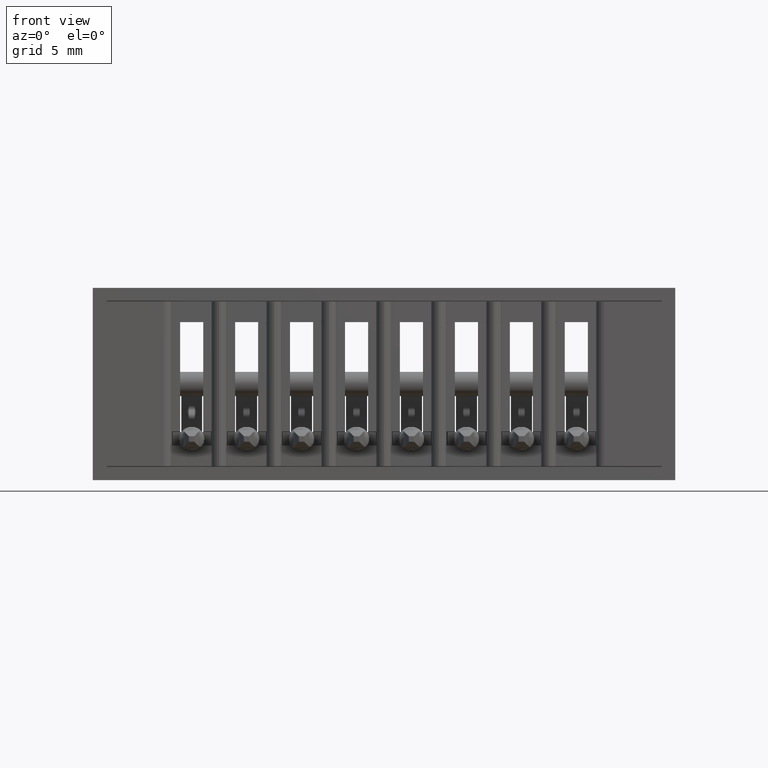
[diagram: clean part render]
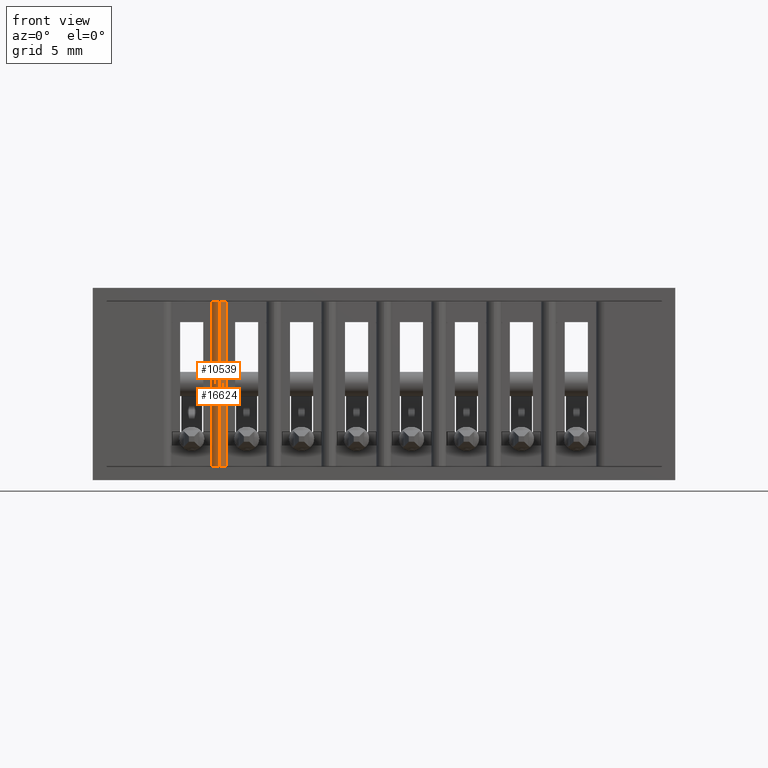
[diagram: same view with one multi-face feature highlighted, each face labeled with its STEP entity id]
A machine part, front view. The highlighted faces form ONE feature: a constant-radius fillet chain: 2 tangent blend faces with common blend radius 0.381 mm. The faces share edges in the B-rep.
Their STEP definitions:
[1] entity #10539 (Cylinder):
#6 = AXIS2_PLACEMENT_3D ( 'NONE', #14142, #5935, #15520 ) ;
#124 = LINE ( 'NONE', #8327, #13921 ) ;
#290 = VERTEX_POINT ( 'NONE', #2509 ) ;
#301 = DIRECTION ( 'NONE',  ( 1.000000000000000000, 0.0000000000000000000, 0.0000000000000000000 ) ) ;
#442 = LINE ( 'NONE', #7029, #10633 ) ;
#464 = VERTEX_POINT ( 'NONE', #8368 ) ;
#875 = VERTEX_POINT ( 'NONE', #3066 ) ;
#960 = CARTESIAN_POINT ( 'NONE',  ( 0.2159999999999996900, 0.01499999999999993200, -0.3499999999999999800 ) ) ;
#1284 = EDGE_CURVE ( 'NONE', #8221, #11130, #124, .T. ) ;
#1411 = CARTESIAN_POINT ( 'NONE',  ( 0.2159999999999996900, 0.01499999999999993200, -0.3499999999999999800 ) ) ;
#1544 = EDGE_CURVE ( 'NONE', #875, #11130, #5986, .T. ) ;
#1702 = DIRECTION ( 'NONE',  ( -0.0000000000000000000, -0.0000000000000000000, 1.000000000000000000 ) ) ;
#1873 = CARTESIAN_POINT ( 'NONE',  ( 0.2159999999999996900, 0.01499999999999993200, -0.02500000000000000500 ) ) ;
#2123 = CARTESIAN_POINT ( 'NONE',  ( 0.2159999999999996900, 0.01500000000000002700, -0.2615000000000001800 ) ) ;
#2509 = CARTESIAN_POINT ( 'NONE',  ( 0.2159999999999996900, 0.01500000000000003200, -0.2875000000000001400 ) ) ;
#2690 = FACE_OUTER_BOUND ( 'NONE', #16123, .T. ) ;
#3014 = DIRECTION ( 'NONE',  ( -0.0000000000000000000, -0.0000000000000000000, 1.000000000000000000 ) ) ;
#3066 = CARTESIAN_POINT ( 'NONE',  ( 0.2299999999999992300, 3.337045290419808700E-005, -0.02500000000000000500 ) ) ;
#3091 = CARTESIAN_POINT ( 'NONE',  ( 0.2309999999999996800, 0.01499999999999991600, -0.3499999999999999800 ) ) ;
#3318 = ORIENTED_EDGE ( 'NONE', *, *, #4066, .F. ) ;
#3658 = ORIENTED_EDGE ( 'NONE', *, *, #13545, .F. ) ;
#3784 = AXIS2_PLACEMENT_3D ( 'NONE', #3091, #1702, #301 ) ;
#4066 = EDGE_CURVE ( 'NONE', #14289, #8486, #8388, .T. ) ;
#4151 = LINE ( 'NONE', #1411, #14671 ) ;
#4225 = ORIENTED_EDGE ( 'NONE', *, *, #1284, .F. ) ;
#4362 = ORIENTED_EDGE ( 'NONE', *, *, #1544, .T. ) ;
#4726 = VECTOR ( 'NONE', #9262, 39.37007874015748100 ) ;
#4793 = CARTESIAN_POINT ( 'NONE',  ( 0.2159999999999996900, 0.01499999999999993200, -0.3249999999999999600 ) ) ;
#5019 = VECTOR ( 'NONE', #11170, 39.37007874015748100 ) ;
#5063 = CIRCLE ( 'NONE', #17371, 0.01499999999999997700 ) ;
#5076 = CYLINDRICAL_SURFACE ( 'NONE', #3784, 0.01499999999999997700 ) ;
#5935 = DIRECTION ( 'NONE',  ( 0.0000000000000000000, -0.0000000000000000000, -1.000000000000000000 ) ) ;
#5986 = CIRCLE ( 'NONE', #6, 0.01499999999999997700 ) ;
#6905 = DIRECTION ( 'NONE',  ( -0.0000000000000000000, -0.0000000000000000000, 1.000000000000000000 ) ) ;
#6974 = DIRECTION ( 'NONE',  ( -0.0000000000000000000, -0.0000000000000000000, 1.000000000000000000 ) ) ;
#7029 = CARTESIAN_POINT ( 'NONE',  ( 0.2299999999999992300, 3.337045290419595200E-005, -0.1749999999999999900 ) ) ;
#7174 = CARTESIAN_POINT ( 'NONE',  ( 0.2159999999999996900, 0.01499999999999998900, -0.08849999999999995400 ) ) ;
#8086 = DIRECTION ( 'NONE',  ( -0.0000000000000000000, -0.0000000000000000000, -1.000000000000000000 ) ) ;
#8221 = VERTEX_POINT ( 'NONE', #14329 ) ;
#8327 = CARTESIAN_POINT ( 'NONE',  ( 0.2159999999999996900, 0.01499999999999993200, -0.3499999999999999800 ) ) ;
#8368 = CARTESIAN_POINT ( 'NONE',  ( 0.2299999999999992300, 3.337045290420022100E-005, -0.3249999999999999600 ) ) ;
#8388 = LINE ( 'NONE', #960, #4726 ) ;
#8486 = VERTEX_POINT ( 'NONE', #7174 ) ;
#8891 = VECTOR ( 'NONE', #3014, 39.37007874015748100 ) ;
#9262 = DIRECTION ( 'NONE',  ( -0.0000000000000000000, -0.0000000000000000000, 1.000000000000000000 ) ) ;
#9789 = CARTESIAN_POINT ( 'NONE',  ( 0.2159999999999996900, 0.01499999999999993200, -0.3499999999999999800 ) ) ;
#10539 = ADVANCED_FACE ( 'NONE', ( #2690 ), #5076, .T. ) ;
#10633 = VECTOR ( 'NONE', #13846, 39.37007874015748100 ) ;
#11130 = VERTEX_POINT ( 'NONE', #1873 ) ;
#11170 = DIRECTION ( 'NONE',  ( -0.0000000000000000000, -0.0000000000000000000, 1.000000000000000000 ) ) ;
#11291 = CARTESIAN_POINT ( 'NONE',  ( 0.2159999999999996900, 0.01499999999999993200, -0.3499999999999999800 ) ) ;
#12099 = LINE ( 'NONE', #11291, #8891 ) ;
#12627 = EDGE_CURVE ( 'NONE', #464, #13743, #5063, .T. ) ;
#12845 = ORIENTED_EDGE ( 'NONE', *, *, #12627, .F. ) ;
#13522 = EDGE_CURVE ( 'NONE', #13743, #290, #4151, .T. ) ;
#13545 = EDGE_CURVE ( 'NONE', #875, #464, #442, .T. ) ;
#13743 = VERTEX_POINT ( 'NONE', #4793 ) ;
#13846 = DIRECTION ( 'NONE',  ( 0.0000000000000000000, 0.0000000000000000000, -1.000000000000000000 ) ) ;
#13921 = VECTOR ( 'NONE', #6974, 39.37007874015748100 ) ;
#14108 = EDGE_CURVE ( 'NONE', #290, #14289, #12099, .T. ) ;
#14142 = CARTESIAN_POINT ( 'NONE',  ( 0.2309999999999996800, 0.01499999999999991600, -0.02500000000000000500 ) ) ;
#14289 = VERTEX_POINT ( 'NONE', #2123 ) ;
#14329 = CARTESIAN_POINT ( 'NONE',  ( 0.2159999999999996900, 0.01499999999999998900, -0.06250000000000002800 ) ) ;
#14671 = VECTOR ( 'NONE', #6905, 39.37007874015748100 ) ;
#15520 = DIRECTION ( 'NONE',  ( 1.000000000000000000, 0.0000000000000000000, 0.0000000000000000000 ) ) ;
#15981 = LINE ( 'NONE', #9789, #5019 ) ;
#16123 = EDGE_LOOP ( 'NONE', ( #3658, #4362, #4225, #16349, #3318, #17776, #16427, #12845 ) ) ;
#16278 = EDGE_CURVE ( 'NONE', #8486, #8221, #15981, .T. ) ;
#16293 = CARTESIAN_POINT ( 'NONE',  ( 0.2309999999999996800, 0.01499999999999991600, -0.3249999999999999600 ) ) ;
#16349 = ORIENTED_EDGE ( 'NONE', *, *, #16278, .F. ) ;
#16427 = ORIENTED_EDGE ( 'NONE', *, *, #13522, .F. ) ;
#17371 = AXIS2_PLACEMENT_3D ( 'NONE', #16293, #8086, #17649 ) ;
#17649 = DIRECTION ( 'NONE',  ( 1.000000000000000000, 0.0000000000000000000, 0.0000000000000000000 ) ) ;
#17776 = ORIENTED_EDGE ( 'NONE', *, *, #14108, .F. ) ;
[2] entity #16624 (Cylinder):
#50 = LINE ( 'NONE', #4621, #11099 ) ;
#253 = CARTESIAN_POINT ( 'NONE',  ( 0.2439999999999996600, 0.01499999999999997500, -0.3249999999999999600 ) ) ;
#442 = LINE ( 'NONE', #7029, #10633 ) ;
#464 = VERTEX_POINT ( 'NONE', #8368 ) ;
#875 = VERTEX_POINT ( 'NONE', #3066 ) ;
#1014 = ORIENTED_EDGE ( 'NONE', *, *, #6028, .T. ) ;
#1311 = ORIENTED_EDGE ( 'NONE', *, *, #13545, .T. ) ;
#2788 = VERTEX_POINT ( 'NONE', #9037 ) ;
#3066 = CARTESIAN_POINT ( 'NONE',  ( 0.2299999999999992300, 3.337045290419808700E-005, -0.02500000000000000500 ) ) ;
#3349 = VERTEX_POINT ( 'NONE', #10372 ) ;
#3453 = EDGE_LOOP ( 'NONE', ( #17257, #14505, #1014, #6578, #10314, #7359, #6714, #1311 ) ) ;
#3630 = DIRECTION ( 'NONE',  ( -0.0000000000000000000, -0.0000000000000000000, 1.000000000000000000 ) ) ;
#4170 = DIRECTION ( 'NONE',  ( -0.0000000000000000000, -0.0000000000000000000, 1.000000000000000000 ) ) ;
#4220 = EDGE_CURVE ( 'NONE', #2788, #6371, #8166, .T. ) ;
#4325 = CIRCLE ( 'NONE', #9470, 0.01499999999999997700 ) ;
#4621 = CARTESIAN_POINT ( 'NONE',  ( 0.2439999999999996600, 0.01499999999999997500, -0.3499999999999999800 ) ) ;
#5223 = EDGE_CURVE ( 'NONE', #875, #6371, #14109, .T. ) ;
#5513 = LINE ( 'NONE', #15552, #16461 ) ;
#5578 = EDGE_CURVE ( 'NONE', #7240, #2788, #16066, .T. ) ;
#6028 = EDGE_CURVE ( 'NONE', #3349, #6598, #5513, .T. ) ;
#6126 = LINE ( 'NONE', #11648, #15797 ) ;
#6223 = DIRECTION ( 'NONE',  ( 0.0000000000000000000, 0.0000000000000000000, 1.000000000000000000 ) ) ;
#6371 = VERTEX_POINT ( 'NONE', #16160 ) ;
#6578 = ORIENTED_EDGE ( 'NONE', *, *, #11706, .T. ) ;
#6598 = VERTEX_POINT ( 'NONE', #8429 ) ;
#6714 = ORIENTED_EDGE ( 'NONE', *, *, #5223, .F. ) ;
#6942 = CARTESIAN_POINT ( 'NONE',  ( 0.2289999999999997000, 0.01499999999999997700, -0.02500000000000000500 ) ) ;
#7029 = CARTESIAN_POINT ( 'NONE',  ( 0.2299999999999992300, 3.337045290419595200E-005, -0.1749999999999999900 ) ) ;
#7147 = FACE_OUTER_BOUND ( 'NONE', #3453, .T. ) ;
#7240 = VERTEX_POINT ( 'NONE', #10216 ) ;
#7359 = ORIENTED_EDGE ( 'NONE', *, *, #4220, .T. ) ;
#8166 = LINE ( 'NONE', #8281, #15434 ) ;
#8281 = CARTESIAN_POINT ( 'NONE',  ( 0.2439999999999996600, 0.01499999999999997500, -0.3499999999999999800 ) ) ;
#8359 = DIRECTION ( 'NONE',  ( 1.000000000000000000, 0.0000000000000000000, 0.0000000000000000000 ) ) ;
#8368 = CARTESIAN_POINT ( 'NONE',  ( 0.2299999999999992300, 3.337045290420022100E-005, -0.3249999999999999600 ) ) ;
#8429 = CARTESIAN_POINT ( 'NONE',  ( 0.2439999999999996600, 0.01499999999999997500, -0.2615000000000001200 ) ) ;
#8783 = VECTOR ( 'NONE', #3630, 39.37007874015748100 ) ;
#8968 = DIRECTION ( 'NONE',  ( -0.0000000000000000000, -0.0000000000000000000, 1.000000000000000000 ) ) ;
#9037 = CARTESIAN_POINT ( 'NONE',  ( 0.2439999999999996600, 0.01499999999999997500, -0.06250000000000001400 ) ) ;
#9296 = DIRECTION ( 'NONE',  ( 1.000000000000000000, 0.0000000000000000000, 0.0000000000000000000 ) ) ;
#9470 = AXIS2_PLACEMENT_3D ( 'NONE', #14430, #6223, #15839 ) ;
#10112 = DIRECTION ( 'NONE',  ( -0.0000000000000000000, -0.0000000000000000000, 1.000000000000000000 ) ) ;
#10216 = CARTESIAN_POINT ( 'NONE',  ( 0.2439999999999996600, 0.01499999999999998900, -0.08849999999999995400 ) ) ;
#10314 = ORIENTED_EDGE ( 'NONE', *, *, #5578, .T. ) ;
#10372 = CARTESIAN_POINT ( 'NONE',  ( 0.2439999999999996600, 0.01500000000000003200, -0.2875000000000000900 ) ) ;
#10633 = VECTOR ( 'NONE', #13846, 39.37007874015748100 ) ;
#11099 = VECTOR ( 'NONE', #10112, 39.37007874015748100 ) ;
#11648 = CARTESIAN_POINT ( 'NONE',  ( 0.2439999999999996600, 0.01499999999999997500, -0.3499999999999999800 ) ) ;
#11706 = EDGE_CURVE ( 'NONE', #6598, #7240, #50, .T. ) ;
#11831 = EDGE_CURVE ( 'NONE', #13058, #3349, #6126, .T. ) ;
#13058 = VERTEX_POINT ( 'NONE', #253 ) ;
#13171 = CYLINDRICAL_SURFACE ( 'NONE', #15332, 0.01499999999999997700 ) ;
#13247 = CARTESIAN_POINT ( 'NONE',  ( 0.2439999999999996600, 0.01499999999999997500, -0.3499999999999999800 ) ) ;
#13344 = CARTESIAN_POINT ( 'NONE',  ( 0.2289999999999997000, 0.01499999999999997700, -0.3499999999999999800 ) ) ;
#13545 = EDGE_CURVE ( 'NONE', #875, #464, #442, .T. ) ;
#13774 = AXIS2_PLACEMENT_3D ( 'NONE', #6942, #16540, #8359 ) ;
#13846 = DIRECTION ( 'NONE',  ( 0.0000000000000000000, 0.0000000000000000000, -1.000000000000000000 ) ) ;
#14109 = CIRCLE ( 'NONE', #13774, 0.01499999999999997700 ) ;
#14430 = CARTESIAN_POINT ( 'NONE',  ( 0.2289999999999997000, 0.01499999999999997700, -0.3249999999999999600 ) ) ;
#14505 = ORIENTED_EDGE ( 'NONE', *, *, #11831, .T. ) ;
#15332 = AXIS2_PLACEMENT_3D ( 'NONE', #13344, #17466, #9296 ) ;
#15434 = VECTOR ( 'NONE', #4170, 39.37007874015748100 ) ;
#15552 = CARTESIAN_POINT ( 'NONE',  ( 0.2439999999999996600, 0.01499999999999997500, -0.3499999999999999800 ) ) ;
#15797 = VECTOR ( 'NONE', #8968, 39.37007874015748100 ) ;
#15839 = DIRECTION ( 'NONE',  ( 1.000000000000000000, 0.0000000000000000000, 0.0000000000000000000 ) ) ;
#16066 = LINE ( 'NONE', #13247, #8783 ) ;
#16160 = CARTESIAN_POINT ( 'NONE',  ( 0.2439999999999996600, 0.01499999999999997500, -0.02500000000000000500 ) ) ;
#16461 = VECTOR ( 'NONE', #16928, 39.37007874015748100 ) ;
#16540 = DIRECTION ( 'NONE',  ( -0.0000000000000000000, 0.0000000000000000000, 1.000000000000000000 ) ) ;
#16624 = ADVANCED_FACE ( 'NONE', ( #7147 ), #13171, .T. ) ;
#16928 = DIRECTION ( 'NONE',  ( -0.0000000000000000000, -0.0000000000000000000, 1.000000000000000000 ) ) ;
#17257 = ORIENTED_EDGE ( 'NONE', *, *, #17461, .T. ) ;
#17461 = EDGE_CURVE ( 'NONE', #464, #13058, #4325, .T. ) ;
#17466 = DIRECTION ( 'NONE',  ( -0.0000000000000000000, -0.0000000000000000000, 1.000000000000000000 ) ) ;